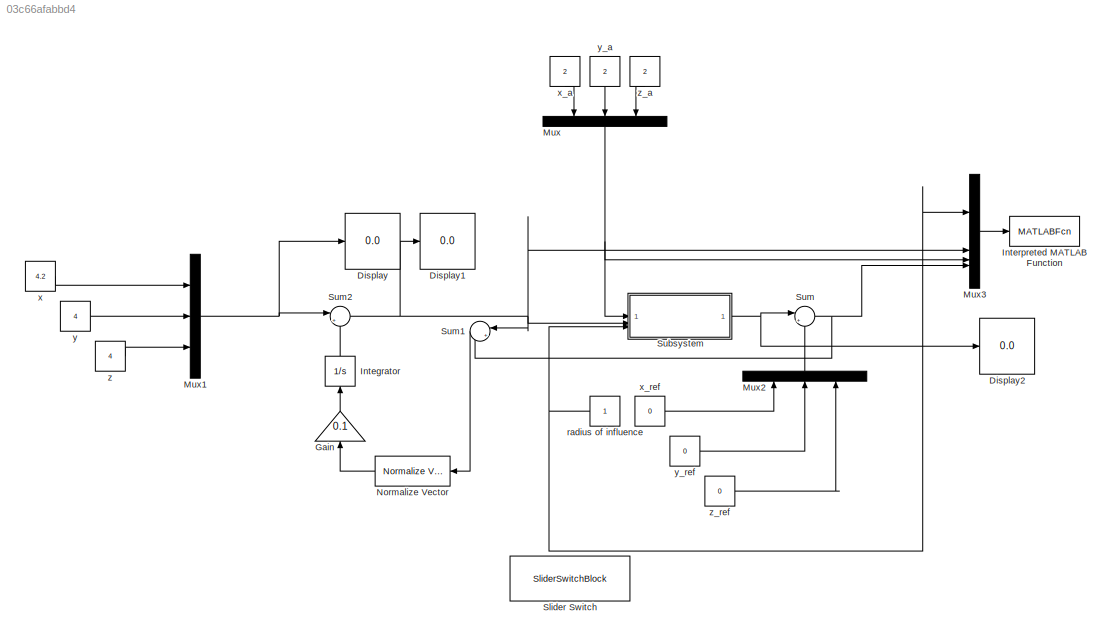
MODEL slx_03c66afabbd4
KIND model
CONFIG AbsTol = auto
CONFIG EnableMultiTasking = off
CONFIG FixedStep = auto
CONFIG MaxStep = auto
CONFIG MinStep = auto
CONFIG RelTol = 1e-3
CONFIG SampleTimeConstraint = Unconstrained
CONFIG SolverName = VariableStepAuto
CONFIG StartTime = 0.0
CONFIG StopTime = inf
BLOCK [Display] Display
  Decimation = 1
BLOCK [Display] Display1
  Decimation = 1
BLOCK [Display] Display2
  Decimation = 1
BLOCK [Gain] Gain
  Gain = 0.1
  NameLocation = right
BLOCK [Integrator] Integrator
  NameLocation = right
BLOCK [MATLABFcn] Interpreted MATLAB Function
  MATLABFcn = avoidance_test(u(1),u(2),u(3),u(4),u(5),u(6),u(7),u(8),u(9),u(10))
BLOCK [Mux] Mux
  DisplayOption = bar
  Inputs = 3
  NameLocation = left
BLOCK [Mux] Mux1
  DisplayOption = bar
  Inputs = 3
BLOCK [Mux] Mux2
  DisplayOption = bar
  Inputs = 3
  NameLocation = right
BLOCK [Mux] Mux3
  DisplayOption = bar
BLOCK [Reference] Normalize Vector  REF=vrlib/Utilities/Normalize Vector
  NameLocation = top
  SourceBlock = vrlib/Utilities/Normalize Vector
  SourceType = Normalize Vector
BLOCK [SliderSwitchBlock] Slider Switch
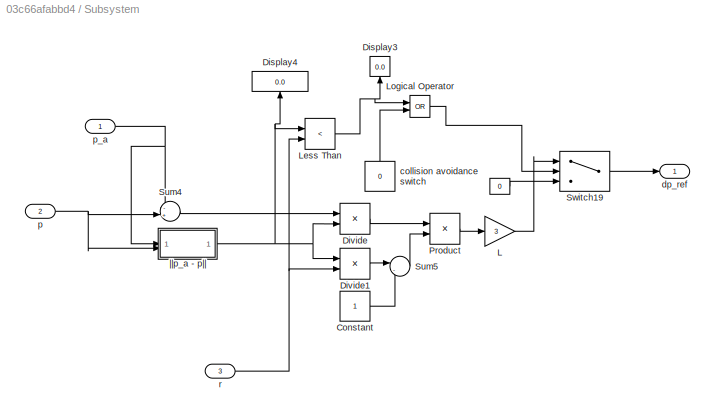
BLOCK [SubSystem] Subsystem
BLOCK [Constant] Subsystem/ 
  Value = 0
BLOCK [Constant] Subsystem/Constant
BLOCK [Display] Subsystem/Display3
  Decimation = 1
  NameLocation = right
BLOCK [Display] Subsystem/Display4
  Decimation = 1
  NameLocation = right
BLOCK [Product] Subsystem/Divide
  Inputs = */
BLOCK [Product] Subsystem/Divide1
  Inputs = */
BLOCK [Gain] Subsystem/L
  Gain = 3
BLOCK [RelationalOperator] Subsystem/Less Than
  InputSameDT = off
  Operator = <
  OutDataTypeStr = boolean
  RndMeth = Simplest
BLOCK [Logic] Subsystem/Logical Operator
  AllPortsSameDT = off
  Operator = OR
  OutDataTypeStr = boolean
BLOCK [Product] Subsystem/Product
BLOCK [Sum] Subsystem/Sum4
  Inputs = -+|
BLOCK [Sum] Subsystem/Sum5
  Inputs = |-+
BLOCK [Switch] Subsystem/Switch19
  Criteria = u2 > Threshold
  InputSameDT = off
  SaturateOnIntegerOverflow = off
BLOCK [Constant] Subsystem/collision avoidance switch
  NameLocation = top
  Value = 0
BLOCK [Outport] Subsystem/dp_ref
BLOCK [Inport] Subsystem/p
  Port = 2
BLOCK [Inport] Subsystem/p_a
BLOCK [Inport] Subsystem/r
  Port = 3
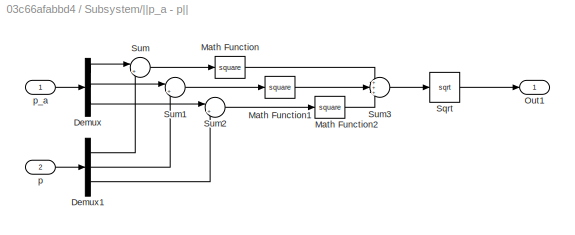
BLOCK [SubSystem] Subsystem/||p_a - p||
BLOCK [Demux] Subsystem/||p_a - p||/Demux
  Outputs = 3
BLOCK [Demux] Subsystem/||p_a - p||/Demux1
  Outputs = 3
BLOCK [Math] Subsystem/||p_a - p||/Math Function
  Operator = square
BLOCK [Math] Subsystem/||p_a - p||/Math Function1
  Operator = square
BLOCK [Math] Subsystem/||p_a - p||/Math Function2
  Operator = square
BLOCK [Outport] Subsystem/||p_a - p||/Out1
BLOCK [Sqrt] Subsystem/||p_a - p||/Sqrt
BLOCK [Sum] Subsystem/||p_a - p||/Sum
  Inputs = |+-
BLOCK [Sum] Subsystem/||p_a - p||/Sum1
  Inputs = |+-
BLOCK [Sum] Subsystem/||p_a - p||/Sum2
  Inputs = |+-
BLOCK [Sum] Subsystem/||p_a - p||/Sum3
  Inputs = +++
BLOCK [Inport] Subsystem/||p_a - p||/p
  Port = 2
BLOCK [Inport] Subsystem/||p_a - p||/p_a
BLOCK [Sum] Sum
  Inputs = |++
BLOCK [Sum] Sum1
  Inputs = |+-
  NameLocation = top
BLOCK [Sum] Sum2
  Inputs = |+-
BLOCK [Constant] radius of influence
  NameLocation = top
BLOCK [Constant] x
  Value = 4.2
BLOCK [Constant] x_a
  NameLocation = top
  Value = 2
BLOCK [Constant] x_ref
  Value = 0
BLOCK [Constant] y
  Value = 4
BLOCK [Constant] y_a
  NameLocation = top
  Value = 2
BLOCK [Constant] y_ref
  Value = 0
BLOCK [Constant] z
  Value = 4
BLOCK [Constant] z_a
  NameLocation = top
  Value = 2
BLOCK [Constant] z_ref
  Value = 0
LINE Gain:1 -> Integrator:1
LINE Integrator:1 -> Sum2:2
NET Mux1:1 -> Display:1, Sum2:1
LINE Mux2:1 -> Sum:2
LINE Mux3:1 -> Interpreted MATLAB Function:1
NET Mux:1 -> Mux3:3, Subsystem:1
LINE Normalize Vector:1 -> Gain:1
LINE Subsystem/ :1 -> Subsystem/Switch19:3
LINE Subsystem/Constant:1 -> Subsystem/Sum5:2
LINE Subsystem/Divide1:1 -> Subsystem/Sum5:1
LINE Subsystem/Divide:1 -> Subsystem/Product:1
LINE Subsystem/L:1 -> Subsystem/Switch19:1
NET Subsystem/Less Than:1 -> Subsystem/Display3:1, Subsystem/Logical Operator:1
LINE Subsystem/Logical Operator:1 -> Subsystem/Switch19:2
LINE Subsystem/Product:1 -> Subsystem/L:1
LINE Subsystem/Sum4:1 -> Subsystem/Divide:1
LINE Subsystem/Sum5:1 -> Subsystem/Product:2
LINE Subsystem/Switch19:1 -> Subsystem/dp_ref:1
LINE Subsystem/collision avoidance switch:1 -> Subsystem/Logical Operator:2
NET Subsystem/p:1 -> Subsystem/Sum4:2, Subsystem/||p_a - p||:2
NET Subsystem/p_a:1 -> Subsystem/Sum4:1, Subsystem/||p_a - p||:1
NET Subsystem/r:1 -> Subsystem/Divide1:2, Subsystem/Less Than:2
LINE Subsystem/||p_a - p||/Demux1:1 -> Subsystem/||p_a - p||/Sum:2
LINE Subsystem/||p_a - p||/Demux1:2 -> Subsystem/||p_a - p||/Sum1:2
LINE Subsystem/||p_a - p||/Demux1:3 -> Subsystem/||p_a - p||/Sum2:2
LINE Subsystem/||p_a - p||/Demux:1 -> Subsystem/||p_a - p||/Sum:1
LINE Subsystem/||p_a - p||/Demux:2 -> Subsystem/||p_a - p||/Sum1:1
LINE Subsystem/||p_a - p||/Demux:3 -> Subsystem/||p_a - p||/Sum2:1
LINE Subsystem/||p_a - p||/Math Function1:1 -> Subsystem/||p_a - p||/Sum3:2
LINE Subsystem/||p_a - p||/Math Function2:1 -> Subsystem/||p_a - p||/Sum3:3
LINE Subsystem/||p_a - p||/Math Function:1 -> Subsystem/||p_a - p||/Sum3:1
LINE Subsystem/||p_a - p||/Sqrt:1 -> Subsystem/||p_a - p||/Out1:1
LINE Subsystem/||p_a - p||/Sum1:1 -> Subsystem/||p_a - p||/Math Function1:1
LINE Subsystem/||p_a - p||/Sum2:1 -> Subsystem/||p_a - p||/Math Function2:1
LINE Subsystem/||p_a - p||/Sum3:1 -> Subsystem/||p_a - p||/Sqrt:1
LINE Subsystem/||p_a - p||/Sum:1 -> Subsystem/||p_a - p||/Math Function:1
LINE Subsystem/||p_a - p||/p:1 -> Subsystem/||p_a - p||/Demux1:1
LINE Subsystem/||p_a - p||/p_a:1 -> Subsystem/||p_a - p||/Demux:1
NET Subsystem/||p_a - p||:1 -> Subsystem/Display4:1, Subsystem/Divide1:1, Subsystem/Divide:2, Subsystem/Less Than:1
NET Subsystem:1 -> Display2:1, Sum:1
LINE Sum1:1 -> Normalize Vector:1
NET Sum2:1 -> Display1:1, Mux3:2, Subsystem:2, Sum1:1
NET Sum:1 -> Mux3:4, Sum1:2
NET radius of influence:1 -> Mux3:1, Subsystem:3
LINE x:1 -> Mux1:1
LINE x_a:1 -> Mux:1
LINE x_ref:1 -> Mux2:1
LINE y:1 -> Mux1:2
LINE y_a:1 -> Mux:2
LINE y_ref:1 -> Mux2:2
LINE z:1 -> Mux1:3
LINE z_a:1 -> Mux:3
LINE z_ref:1 -> Mux2:3
note: NET lines group one-source signal fan-out (src -> all destinations, sorted); 1:1 wires keep LINE
